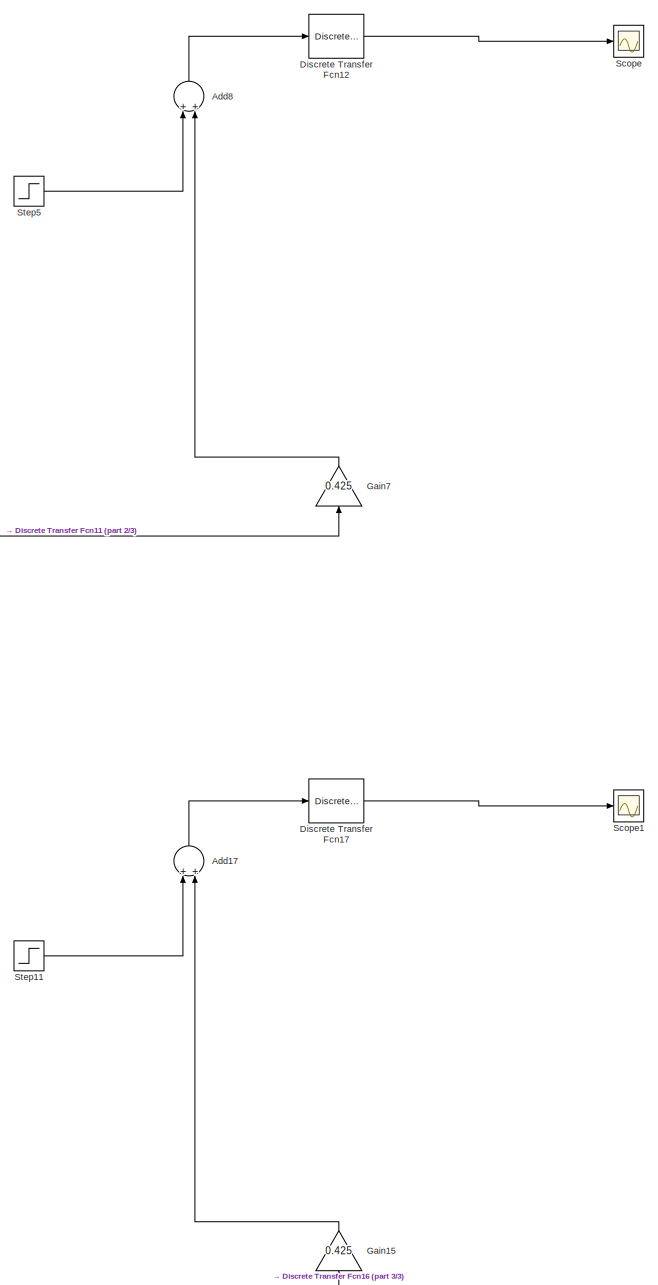
[diagram: root canvas - part 1/3, right side, full height]
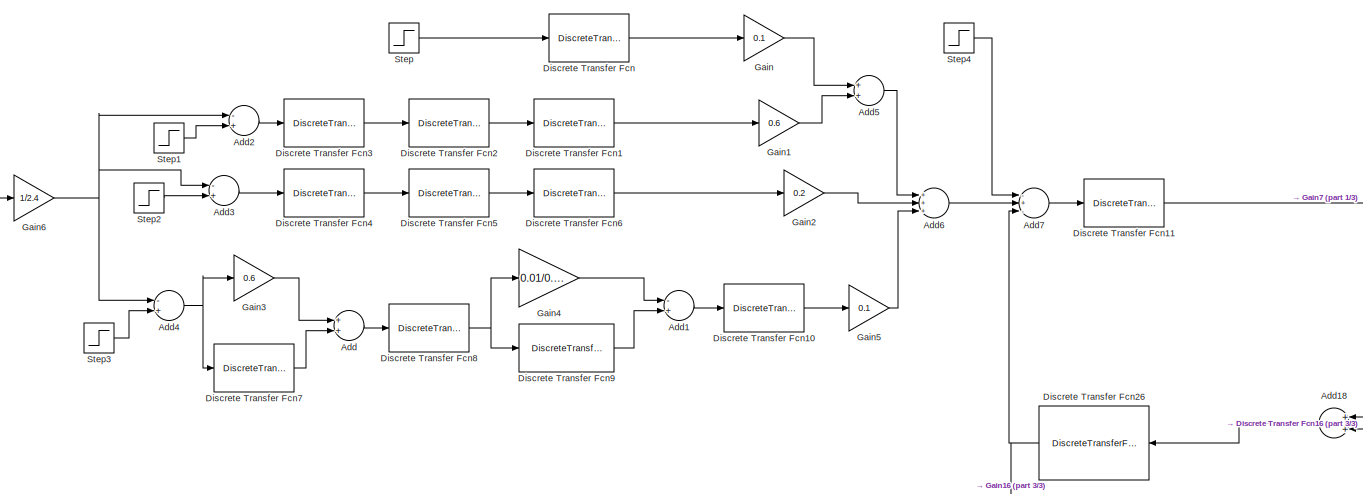
[diagram: root canvas - part 2/3, middle left region]
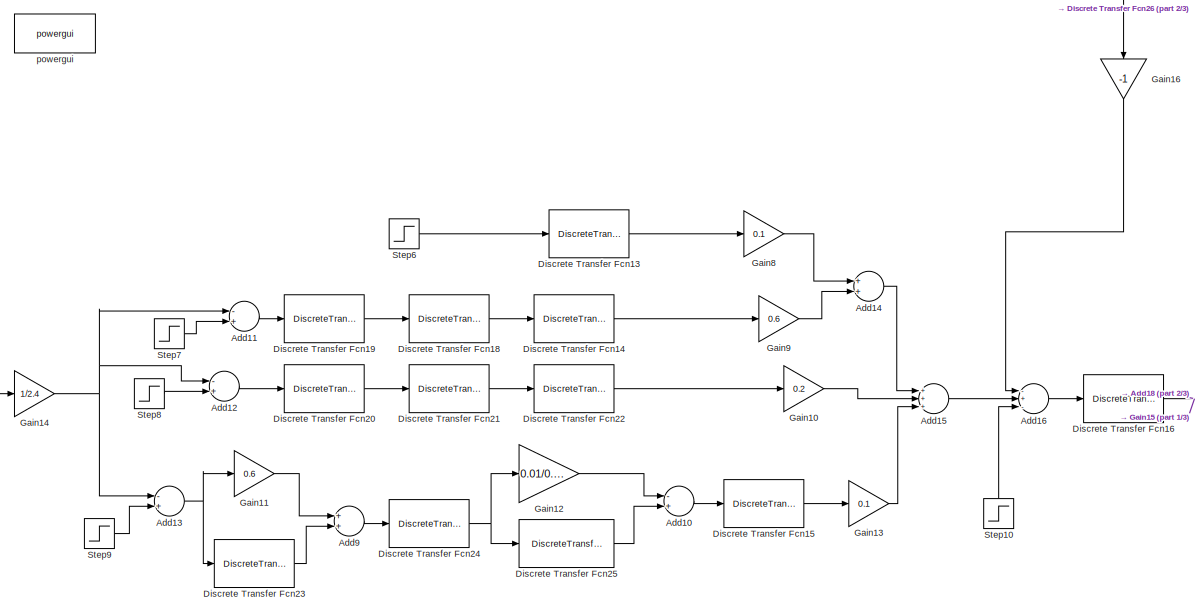
[diagram: root canvas - part 3/3, bottom left region]
MODEL slx_da0679af8fb1
KIND model
CONFIG AbsTol = auto
CONFIG EnableMultiTasking = off
CONFIG FixedStep = auto
CONFIG MaxStep = 1e-4
CONFIG MinStep = auto
CONFIG RelTol = 1e-3
CONFIG SampleTimeConstraint = Unconstrained
CONFIG Solver = VariableStepDiscrete
CONFIG SolverName = VariableStepDiscrete
CONFIG StartTime = 0.0
CONFIG StopTime = 10
BLOCK [Sum] Add
  InputSameDT = off
  OutDataTypeStr = Inherit: Inherit via internal rule
  Ports = [2, 1]
  SaturateOnIntegerOverflow = off
BLOCK [Sum] Add1
  InputSameDT = off
  Inputs = -+
  OutDataTypeStr = Inherit: Inherit via internal rule
  Ports = [2, 1]
  SaturateOnIntegerOverflow = off
BLOCK [Sum] Add10
  InputSameDT = off
  Inputs = -+
  OutDataTypeStr = Inherit: Inherit via internal rule
  Ports = [2, 1]
  SaturateOnIntegerOverflow = off
BLOCK [Sum] Add11
  InputSameDT = off
  Inputs = -+
  OutDataTypeStr = Inherit: Inherit via internal rule
  Ports = [2, 1]
  SaturateOnIntegerOverflow = off
BLOCK [Sum] Add12
  InputSameDT = off
  Inputs = -+
  OutDataTypeStr = Inherit: Inherit via internal rule
  Ports = [2, 1]
  SaturateOnIntegerOverflow = off
BLOCK [Sum] Add13
  InputSameDT = off
  Inputs = -+
  OutDataTypeStr = Inherit: Inherit via internal rule
  Ports = [2, 1]
  SaturateOnIntegerOverflow = off
BLOCK [Sum] Add14
  InputSameDT = off
  OutDataTypeStr = Inherit: Inherit via internal rule
  Ports = [2, 1]
  SaturateOnIntegerOverflow = off
BLOCK [Sum] Add15
  InputSameDT = off
  Inputs = +++
  OutDataTypeStr = Inherit: Inherit via internal rule
  Ports = [3, 1]
  SaturateOnIntegerOverflow = off
BLOCK [Sum] Add16
  InputSameDT = off
  Inputs = -+-
  OutDataTypeStr = Inherit: Inherit via internal rule
  Ports = [3, 1]
  SaturateOnIntegerOverflow = off
BLOCK [Sum] Add17
  InputSameDT = off
  OutDataTypeStr = Inherit: Inherit via internal rule
  Ports = [2, 1]
  SaturateOnIntegerOverflow = off
BLOCK [Sum] Add18
  InputSameDT = off
  OutDataTypeStr = Inherit: Inherit via internal rule
  Ports = [2, 1]
  SaturateOnIntegerOverflow = off
BLOCK [Sum] Add2
  InputSameDT = off
  Inputs = -+
  OutDataTypeStr = Inherit: Inherit via internal rule
  Ports = [2, 1]
  SaturateOnIntegerOverflow = off
BLOCK [Sum] Add3
  InputSameDT = off
  Inputs = -+
  OutDataTypeStr = Inherit: Inherit via internal rule
  Ports = [2, 1]
  SaturateOnIntegerOverflow = off
BLOCK [Sum] Add4
  InputSameDT = off
  Inputs = -+
  OutDataTypeStr = Inherit: Inherit via internal rule
  Ports = [2, 1]
  SaturateOnIntegerOverflow = off
BLOCK [Sum] Add5
  InputSameDT = off
  OutDataTypeStr = Inherit: Inherit via internal rule
  Ports = [2, 1]
  SaturateOnIntegerOverflow = off
BLOCK [Sum] Add6
  InputSameDT = off
  Inputs = +++
  OutDataTypeStr = Inherit: Inherit via internal rule
  Ports = [3, 1]
  SaturateOnIntegerOverflow = off
BLOCK [Sum] Add7
  InputSameDT = off
  Inputs = -+-
  OutDataTypeStr = Inherit: Inherit via internal rule
  Ports = [3, 1]
  SaturateOnIntegerOverflow = off
BLOCK [Sum] Add8
  InputSameDT = off
  OutDataTypeStr = Inherit: Inherit via internal rule
  Ports = [2, 1]
  SaturateOnIntegerOverflow = off
BLOCK [Sum] Add9
  InputSameDT = off
  OutDataTypeStr = Inherit: Inherit via internal rule
  Ports = [2, 1]
  SaturateOnIntegerOverflow = off
BLOCK [DiscreteTransferFcn] Discrete Transfer Fcn
  Denominator = [5 1]
  InputPortMap = u0
  Ports = [1, 1]
  SampleTime = 0.001
BLOCK [DiscreteTransferFcn] Discrete Transfer Fcn1
  Denominator = [10 1]
  InputPortMap = u0
  Numerator = [3 1]
  Ports = [1, 1]
  SampleTime = 0.001
BLOCK [DiscreteTransferFcn] Discrete Transfer Fcn10
  Denominator = [0.20 1]
  InputPortMap = u0
  Numerator = [0 1]
  Ports = [1, 1]
  SampleTime = 0.001
BLOCK [DiscreteTransferFcn] Discrete Transfer Fcn11
  Denominator = [20 1]
  InputPortMap = u0
  Numerator = [0 120]
  Ports = [1, 1]
  SampleTime = 0.001
BLOCK [DiscreteTransferFcn] Discrete Transfer Fcn12
  Denominator = [1 0]
  InputPortMap = u0
  Numerator = [0 1]
  Ports = [1, 1]
  SampleTime = 0.001
BLOCK [DiscreteTransferFcn] Discrete Transfer Fcn13
  Denominator = [5 1]
  InputPortMap = u0
  Ports = [1, 1]
  SampleTime = 0.001
BLOCK [DiscreteTransferFcn] Discrete Transfer Fcn14
  Denominator = [10 1]
  InputPortMap = u0
  Numerator = [3 1]
  Ports = [1, 1]
  SampleTime = 0.001
BLOCK [DiscreteTransferFcn] Discrete Transfer Fcn15
  Denominator = [0.20 1]
  InputPortMap = u0
  Numerator = [0 1]
  Ports = [1, 1]
  SampleTime = 0.001
BLOCK [DiscreteTransferFcn] Discrete Transfer Fcn16
  Denominator = [20 1]
  InputPortMap = u0
  Numerator = [0 120]
  Ports = [1, 1]
  SampleTime = 0.001
BLOCK [DiscreteTransferFcn] Discrete Transfer Fcn17
  Denominator = [1 0]
  InputPortMap = u0
  Numerator = [0 1]
  Ports = [1, 1]
  SampleTime = 0.001
BLOCK [DiscreteTransferFcn] Discrete Transfer Fcn18
  Denominator = [0.3 1]
  InputPortMap = u0
  Numerator = [0 1]
  Ports = [1, 1]
  SampleTime = 0.001
BLOCK [DiscreteTransferFcn] Discrete Transfer Fcn19
  Denominator = [0.08 1]
  InputPortMap = u0
  Numerator = [0 1]
  Ports = [1, 1]
  SampleTime = 0.001
BLOCK [DiscreteTransferFcn] Discrete Transfer Fcn2
  Denominator = [0.3 1]
  InputPortMap = u0
  Numerator = [0 1]
  Ports = [1, 1]
  SampleTime = 0.001
BLOCK [DiscreteTransferFcn] Discrete Transfer Fcn20
  Denominator = [41.6 1]
  InputPortMap = u0
  Numerator = [0 1]
  Ports = [1, 1]
  SampleTime = 0.001
BLOCK [DiscreteTransferFcn] Discrete Transfer Fcn21
  Denominator = [0.513 1]
  InputPortMap = u0
  Numerator = [5 1]
  Ports = [1, 1]
  SampleTime = 0.001
BLOCK [DiscreteTransferFcn] Discrete Transfer Fcn22
  Denominator = [0.5 1]
  InputPortMap = u0
  Numerator = [-1 1]
  Ports = [1, 1]
  SampleTime = 0.001
BLOCK [DiscreteTransferFcn] Discrete Transfer Fcn23
  Denominator = [1 1]
  InputPortMap = u0
  Numerator = [0 0.4]
  Ports = [1, 1]
  SampleTime = 0.001
BLOCK [DiscreteTransferFcn] Discrete Transfer Fcn24
  Denominator = [0.05 1]
  InputPortMap = u0
  Numerator = [0 1]
  Ports = [1, 1]
  SampleTime = 0.001
BLOCK [DiscreteTransferFcn] Discrete Transfer Fcn25
  Denominator = [ 0.23 1]
  InputPortMap = u0
  Numerator = [0 1+(0.1/0.23)]
  Ports = [1, 1]
BLOCK [DiscreteTransferFcn] Discrete Transfer Fcn26
  Denominator = [1 0]
  InputPortMap = u0
  Numerator = [0 2*3.14*0.0433]
  Ports = [1, 1]
  SampleTime = 0.001
BLOCK [DiscreteTransferFcn] Discrete Transfer Fcn3
  Denominator = [0.08 1]
  InputPortMap = u0
  Numerator = [0 1]
  Ports = [1, 1]
  SampleTime = 0.001
BLOCK [DiscreteTransferFcn] Discrete Transfer Fcn4
  Denominator = [41.6 1]
  InputPortMap = u0
  Numerator = [0 1]
  Ports = [1, 1]
  SampleTime = 0.001
BLOCK [DiscreteTransferFcn] Discrete Transfer Fcn5
  Denominator = [0.513 1]
  InputPortMap = u0
  Numerator = [5 1]
  Ports = [1, 1]
  SampleTime = 0.001
BLOCK [DiscreteTransferFcn] Discrete Transfer Fcn6
  Denominator = [0.5 1]
  InputPortMap = u0
  Numerator = [-1 1]
  Ports = [1, 1]
  SampleTime = 0.001
BLOCK [DiscreteTransferFcn] Discrete Transfer Fcn7
  Denominator = [1 1]
  InputPortMap = u0
  Numerator = [0 0.4]
  Ports = [1, 1]
  SampleTime = 0.001
BLOCK [DiscreteTransferFcn] Discrete Transfer Fcn8
  Denominator = [0.05 1]
  InputPortMap = u0
  Numerator = [0 1]
  Ports = [1, 1]
  SampleTime = 0.001
BLOCK [DiscreteTransferFcn] Discrete Transfer Fcn9
  Denominator = [ 0.23 1]
  InputPortMap = u0
  Numerator = [0 1+(0.1/0.23)]
  Ports = [1, 1]
BLOCK [Gain] Gain
  Gain = 0.1
  OutDataTypeStr = Inherit: Inherit via internal rule
  ParamDataTypeStr = Inherit: Inherit via internal rule
  SaturateOnIntegerOverflow = off
BLOCK [Gain] Gain1
  Gain = 0.6
  OutDataTypeStr = Inherit: Inherit via internal rule
  ParamDataTypeStr = Inherit: Inherit via internal rule
  SaturateOnIntegerOverflow = off
BLOCK [Gain] Gain10
  Gain = 0.2
  OutDataTypeStr = Inherit: Inherit via internal rule
  ParamDataTypeStr = Inherit: Inherit via internal rule
  SaturateOnIntegerOverflow = off
BLOCK [Gain] Gain11
  Gain = 0.6
  OutDataTypeStr = Inherit: Inherit via internal rule
  ParamDataTypeStr = Inherit: Inherit via internal rule
  SaturateOnIntegerOverflow = off
BLOCK [Gain] Gain12
  Gain = 0.01/0.23
  OutDataTypeStr = Inherit: Inherit via internal rule
  ParamDataTypeStr = Inherit: Inherit via internal rule
  SaturateOnIntegerOverflow = off
BLOCK [Gain] Gain13
  Gain = 0.1
  OutDataTypeStr = Inherit: Inherit via internal rule
  ParamDataTypeStr = Inherit: Inherit via internal rule
  SaturateOnIntegerOverflow = off
BLOCK [Gain] Gain14
  Gain = 1/2.4
  OutDataTypeStr = Inherit: Inherit via internal rule
  ParamDataTypeStr = Inherit: Inherit via internal rule
  SaturateOnIntegerOverflow = off
BLOCK [Gain] Gain15
  Gain = 0.425
  OutDataTypeStr = Inherit: Inherit via internal rule
  ParamDataTypeStr = Inherit: Inherit via internal rule
  SaturateOnIntegerOverflow = off
BLOCK [Gain] Gain16
  Gain = -1
  OutDataTypeStr = Inherit: Inherit via internal rule
  ParamDataTypeStr = Inherit: Inherit via internal rule
  SaturateOnIntegerOverflow = off
BLOCK [Gain] Gain2
  Gain = 0.2
  OutDataTypeStr = Inherit: Inherit via internal rule
  ParamDataTypeStr = Inherit: Inherit via internal rule
  SaturateOnIntegerOverflow = off
BLOCK [Gain] Gain3
  Gain = 0.6
  OutDataTypeStr = Inherit: Inherit via internal rule
  ParamDataTypeStr = Inherit: Inherit via internal rule
  SaturateOnIntegerOverflow = off
BLOCK [Gain] Gain4
  Gain = 0.01/0.23
  OutDataTypeStr = Inherit: Inherit via internal rule
  ParamDataTypeStr = Inherit: Inherit via internal rule
  SaturateOnIntegerOverflow = off
BLOCK [Gain] Gain5
  Gain = 0.1
  OutDataTypeStr = Inherit: Inherit via internal rule
  ParamDataTypeStr = Inherit: Inherit via internal rule
  SaturateOnIntegerOverflow = off
BLOCK [Gain] Gain6
  Gain = 1/2.4
  OutDataTypeStr = Inherit: Inherit via internal rule
  ParamDataTypeStr = Inherit: Inherit via internal rule
  SaturateOnIntegerOverflow = off
BLOCK [Gain] Gain7
  Gain = 0.425
  OutDataTypeStr = Inherit: Inherit via internal rule
  ParamDataTypeStr = Inherit: Inherit via internal rule
  SaturateOnIntegerOverflow = off
BLOCK [Gain] Gain8
  Gain = 0.1
  OutDataTypeStr = Inherit: Inherit via internal rule
  ParamDataTypeStr = Inherit: Inherit via internal rule
  SaturateOnIntegerOverflow = off
BLOCK [Gain] Gain9
  Gain = 0.6
  OutDataTypeStr = Inherit: Inherit via internal rule
  ParamDataTypeStr = Inherit: Inherit via internal rule
  SaturateOnIntegerOverflow = off
BLOCK [Scope] Scope
  NumInputPorts = 1
  Ports = [1]
  ScopeSpecificationString = Simulink.scopes.TimeScopeBlockCfg('CurrentConfiguration', extmgr.ConfigurationSet(extmgr.Configuration('Core','General UI',true),extmgr.Configuration('Core','Source UI',true),extmgr.Configuration('Sources','WiredSimulink',true),extmgr.Configuration('Visuals','Time Domain',true,'SerializedDisplays',{struct('MinYLimReal','490996814683111730735561673312163604996910900301585340678288189767135867950617...<+3831ch>
BLOCK [Scope] Scope1
  NumInputPorts = 1
  Ports = [1]
  ScopeSpecificationString = Simulink.scopes.TimeScopeBlockCfg('CurrentConfiguration', extmgr.ConfigurationSet(extmgr.Configuration('Core','General UI',true),extmgr.Configuration('Core','Source UI',true),extmgr.Configuration('Sources','WiredSimulink',true,'DataLoggingVariableName','ScopeData1'),extmgr.Configuration('Visuals','Time Domain',true,'SerializedDisplays',{struct('MinYLimReal','-57926367751353899884960856634648158598...<+3824ch>
BLOCK [Step] Step
  SampleTime = 0
BLOCK [Step] Step1
  SampleTime = 0
BLOCK [Step] Step10
  SampleTime = 0
BLOCK [Step] Step11
  SampleTime = 0
BLOCK [Step] Step2
  SampleTime = 0
BLOCK [Step] Step3
  SampleTime = 0
BLOCK [Step] Step4
  SampleTime = 0
BLOCK [Step] Step5
  SampleTime = 0
BLOCK [Step] Step6
  SampleTime = 0
BLOCK [Step] Step7
  SampleTime = 0
BLOCK [Step] Step8
  SampleTime = 0
BLOCK [Step] Step9
  SampleTime = 0
BLOCK [Reference] powergui  REF=powerlib/powergui
  Ports = []
  Priority = 1
  SourceBlock = powerlib/powergui
  SourceProductBaseCode = PS
  SourceProductName = Simscape Power Systems
  SourceType = PSB option menu block
LINE Add10:1 -> Discrete Transfer Fcn15:1
LINE Add11:1 -> Discrete Transfer Fcn19:1
LINE Add12:1 -> Discrete Transfer Fcn20:1
NET Add13:1 -> Discrete Transfer Fcn23:1, Gain11:1
LINE Add14:1 -> Add15:1
LINE Add15:1 -> Add16:2
LINE Add16:1 -> Discrete Transfer Fcn16:1
LINE Add17:1 -> Discrete Transfer Fcn17:1
LINE Add18:1 -> Discrete Transfer Fcn26:1
LINE Add1:1 -> Discrete Transfer Fcn10:1
LINE Add2:1 -> Discrete Transfer Fcn3:1
LINE Add3:1 -> Discrete Transfer Fcn4:1
NET Add4:1 -> Discrete Transfer Fcn7:1, Gain3:1
LINE Add5:1 -> Add6:1
LINE Add6:1 -> Add7:2
LINE Add7:1 -> Discrete Transfer Fcn11:1
LINE Add8:1 -> Discrete Transfer Fcn12:1
LINE Add9:1 -> Discrete Transfer Fcn24:1
LINE Add:1 -> Discrete Transfer Fcn8:1
LINE Discrete Transfer Fcn10:1 -> Gain5:1
NET Discrete Transfer Fcn11:1 -> Add18:1, Gain6:1, Gain7:1
LINE Discrete Transfer Fcn12:1 -> Scope:1
LINE Discrete Transfer Fcn13:1 -> Gain8:1
LINE Discrete Transfer Fcn14:1 -> Gain9:1
LINE Discrete Transfer Fcn15:1 -> Gain13:1
NET Discrete Transfer Fcn16:1 -> Add18:2, Gain14:1, Gain15:1
LINE Discrete Transfer Fcn17:1 -> Scope1:1
LINE Discrete Transfer Fcn18:1 -> Discrete Transfer Fcn14:1
LINE Discrete Transfer Fcn19:1 -> Discrete Transfer Fcn18:1
LINE Discrete Transfer Fcn1:1 -> Gain1:1
LINE Discrete Transfer Fcn20:1 -> Discrete Transfer Fcn21:1
LINE Discrete Transfer Fcn21:1 -> Discrete Transfer Fcn22:1
LINE Discrete Transfer Fcn22:1 -> Gain10:1
LINE Discrete Transfer Fcn23:1 -> Add9:2
NET Discrete Transfer Fcn24:1 -> Discrete Transfer Fcn25:1, Gain12:1
LINE Discrete Transfer Fcn25:1 -> Add10:2
NET Discrete Transfer Fcn26:1 -> Add7:3, Gain16:1
LINE Discrete Transfer Fcn2:1 -> Discrete Transfer Fcn1:1
LINE Discrete Transfer Fcn3:1 -> Discrete Transfer Fcn2:1
LINE Discrete Transfer Fcn4:1 -> Discrete Transfer Fcn5:1
LINE Discrete Transfer Fcn5:1 -> Discrete Transfer Fcn6:1
LINE Discrete Transfer Fcn6:1 -> Gain2:1
LINE Discrete Transfer Fcn7:1 -> Add:2
NET Discrete Transfer Fcn8:1 -> Discrete Transfer Fcn9:1, Gain4:1
LINE Discrete Transfer Fcn9:1 -> Add1:2
LINE Discrete Transfer Fcn:1 -> Gain:1
LINE Gain10:1 -> Add15:2
LINE Gain11:1 -> Add9:1
LINE Gain12:1 -> Add10:1
LINE Gain13:1 -> Add15:3
NET Gain14:1 -> Add11:1, Add12:1, Add13:1
LINE Gain15:1 -> Add17:2
LINE Gain16:1 -> Add16:1
LINE Gain1:1 -> Add5:2
LINE Gain2:1 -> Add6:2
LINE Gain3:1 -> Add:1
LINE Gain4:1 -> Add1:1
LINE Gain5:1 -> Add6:3
NET Gain6:1 -> Add2:1, Add3:1, Add4:1
LINE Gain7:1 -> Add8:2
LINE Gain8:1 -> Add14:1
LINE Gain9:1 -> Add14:2
LINE Gain:1 -> Add5:1
LINE Step10:1 -> Add16:3
LINE Step11:1 -> Add17:1
LINE Step1:1 -> Add2:2
LINE Step2:1 -> Add3:2
LINE Step3:1 -> Add4:2
LINE Step4:1 -> Add7:1
LINE Step5:1 -> Add8:1
LINE Step6:1 -> Discrete Transfer Fcn13:1
LINE Step7:1 -> Add11:2
LINE Step8:1 -> Add12:2
LINE Step9:1 -> Add13:2
LINE Step:1 -> Discrete Transfer Fcn:1
note: NET lines group one-source signal fan-out (src -> all destinations, sorted); 1:1 wires keep LINE
